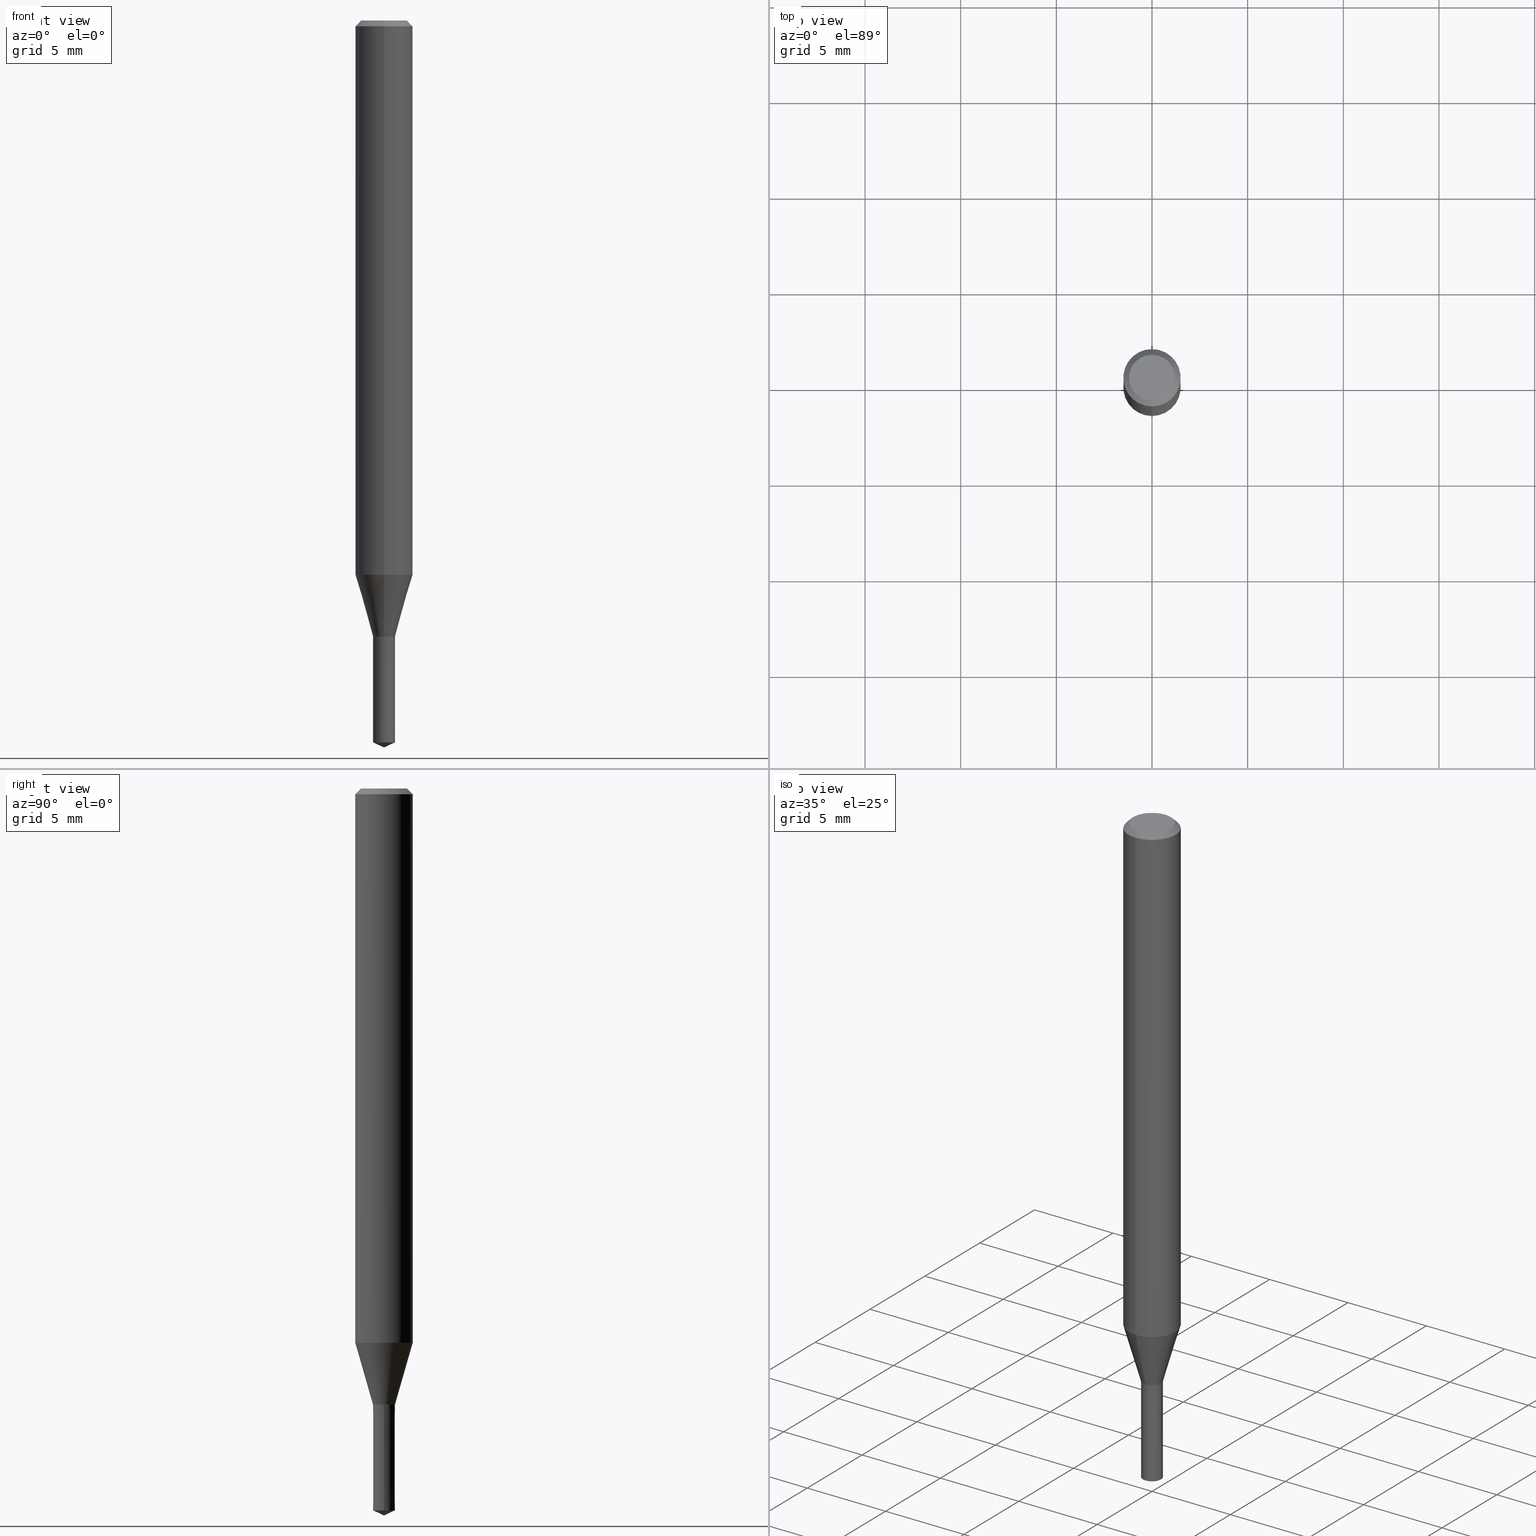
[diagram: canonical four-view strip — front | top / right | iso, engineering-drawing reading convention]
A machine part, canonical four-view strip (front | top / right | iso — engineering-drawing reading convention). The complete STEP part file that produces these views, byte-faithful:
ISO-10303-21;
HEADER;
FILE_DESCRIPTION(('no description'),'unknown implementation level');
FILE_NAME('UTDSX2115-058-Huellk.stp','  ',('CIMSOURCE GmbH'),('CADClick - KiM GmbH - www.kimweb.de'),'unknown preprocess','ACIS','unknown authorization');
FILE_SCHEMA(('automotive_design'));
ENDSEC;
DATA;
#1=MECHANICAL_DESIGN_GEOMETRIC_PRESENTATION_REPRESENTATION(' ',(#14,#15,#16,#17,#18,#19,#20,#21,#22,#23,#24,#25,#26,#27,#28,#29,#30,#31,#32,#33,#34,#35,#36,#37,#38,#39,#40,#41,#42,#43,#44,#45,#46,#47,#48,#49,#50,#51,#52,#53,#54,#55,#56,#57,#58,#59,#60,#61,#62,#63,#64,#65,#66,#67,#68,#69,#70,#71),#10);
#2=PRODUCT_DEFINITION_CONTEXT('',#72,'design');
#3=APPLICATION_PROTOCOL_DEFINITION('INTERNATIONAL STANDARD','automotive_design',1994,#72);
#4=PRODUCT_CATEGORY_RELATIONSHIP('NONE','NONE',#73,#74);
#5=SHAPE_DEFINITION_REPRESENTATION(#75,#76);
#6=PRODUCT_DEFINITION_CONTEXT('',#77,'design');
#7=APPLICATION_PROTOCOL_DEFINITION('INTERNATIONAL STANDARD','automotive_design',1994,#77);
#8=PRODUCT_CATEGORY_RELATIONSHIP('NONE','NONE',#78,#79);
#9=SHAPE_DEFINITION_REPRESENTATION(#80,#81);
#10= (GEOMETRIC_REPRESENTATION_CONTEXT(3)GLOBAL_UNCERTAINTY_ASSIGNED_CONTEXT((#84))GLOBAL_UNIT_ASSIGNED_CONTEXT((#86,#87,#88))REPRESENTATION_CONTEXT('NONE','WORKSPACE'));
#14=STYLED_ITEM('',(#90),#91);
#15=STYLED_ITEM('',(#92),#93);
#16=STYLED_ITEM('',(#94),#95);
#17=STYLED_ITEM('',(#96),#97);
#18=STYLED_ITEM('',(#98),#99);
#19=STYLED_ITEM('',(#100),#101);
#20=STYLED_ITEM('',(#102),#103);
#21=STYLED_ITEM('',(#104),#105);
#22=STYLED_ITEM('',(#106),#107);
#23=STYLED_ITEM('',(#108),#109);
#24=STYLED_ITEM('',(#110),#111);
#25=STYLED_ITEM('',(#112),#113);
#26=STYLED_ITEM('',(#114),#115);
#27=STYLED_ITEM('',(#116),#117);
#28=STYLED_ITEM('',(#118),#119);
#29=STYLED_ITEM('',(#120),#121);
#30=STYLED_ITEM('',(#122),#123);
#31=STYLED_ITEM('',(#124),#125);
#32=STYLED_ITEM('',(#126),#127);
#33=STYLED_ITEM('',(#128),#129);
#34=STYLED_ITEM('',(#130),#131);
#35=STYLED_ITEM('',(#132),#133);
#36=STYLED_ITEM('',(#134),#135);
#37=STYLED_ITEM('',(#136),#137);
#38=STYLED_ITEM('',(#138),#139);
#39=STYLED_ITEM('',(#140),#141);
#40=STYLED_ITEM('',(#142),#143);
#41=STYLED_ITEM('',(#144),#145);
#42=STYLED_ITEM('',(#146),#147);
#43=STYLED_ITEM('',(#148),#149);
#44=STYLED_ITEM('',(#150),#151);
#45=STYLED_ITEM('',(#152),#153);
#46=STYLED_ITEM('',(#154),#155);
#47=STYLED_ITEM('',(#156),#157);
#48=STYLED_ITEM('',(#158),#159);
#49=STYLED_ITEM('',(#160),#161);
#50=STYLED_ITEM('',(#162),#163);
#51=STYLED_ITEM('',(#164),#165);
#52=STYLED_ITEM('',(#166),#167);
#53=STYLED_ITEM('',(#168),#169);
#54=STYLED_ITEM('',(#170),#171);
#55=STYLED_ITEM('',(#172),#173);
#56=STYLED_ITEM('',(#174),#175);
#57=STYLED_ITEM('',(#176),#177);
#58=STYLED_ITEM('',(#178),#179);
#59=STYLED_ITEM('',(#180),#181);
#60=STYLED_ITEM('',(#182),#183);
#61=STYLED_ITEM('',(#184),#185);
#62=STYLED_ITEM('',(#186),#187);
#63=STYLED_ITEM('',(#188),#189);
#64=STYLED_ITEM('',(#190),#191);
#65=STYLED_ITEM('',(#192),#193);
#66=STYLED_ITEM('',(#194),#195);
#67=STYLED_ITEM('',(#196),#197);
#68=STYLED_ITEM('',(#198),#199);
#69=STYLED_ITEM('',(#200),#201);
#70=STYLED_ITEM('',(#202),#203);
#71=STYLED_ITEM('',(#204),#205);
#72=APPLICATION_CONTEXT(' ');
#73=PRODUCT_CATEGORY('part','NONE');
#74=PRODUCT_RELATED_PRODUCT_CATEGORY('detail',' ',(#206));
#75=PRODUCT_DEFINITION_SHAPE('NONE','NONE',#207);
#76=ADVANCED_BREP_SHAPE_REPRESENTATION('1',(#101,#208),#10);
#77=APPLICATION_CONTEXT(' ');
#78=PRODUCT_CATEGORY('part','NONE');
#79=PRODUCT_RELATED_PRODUCT_CATEGORY('detail',' ',(#209));
#80=PRODUCT_DEFINITION_SHAPE('NONE','NONE',#210);
#81=ADVANCED_BREP_SHAPE_REPRESENTATION('2',(#185,#211),#10);
#84=UNCERTAINTY_MEASURE_WITH_UNIT(LENGTH_MEASURE(1.0E-006),#86,'','');
#86= (CONVERSION_BASED_UNIT('MILLIMETRE',#214)LENGTH_UNIT()NAMED_UNIT(#217));
#87= (NAMED_UNIT(#219)PLANE_ANGLE_UNIT()SI_UNIT($,.RADIAN.));
#88= (NAMED_UNIT(#219)SOLID_ANGLE_UNIT()SI_UNIT($,.STERADIAN.));
#90=PRESENTATION_STYLE_ASSIGNMENT((#225));
#91=VERTEX_POINT('',#226);
#92=PRESENTATION_STYLE_ASSIGNMENT((#227));
#93=ADVANCED_FACE('',(#228),#229,.T.);
#94=PRESENTATION_STYLE_ASSIGNMENT((#230));
#95=ADVANCED_FACE('',(#231),#232,.T.);
#96=PRESENTATION_STYLE_ASSIGNMENT((#233));
#97=VERTEX_POINT('',#234);
#98=PRESENTATION_STYLE_ASSIGNMENT((#235));
#99=EDGE_CURVE('',#107,#203,#236,.T.);
#100=PRESENTATION_STYLE_ASSIGNMENT((#237));
#101=MANIFOLD_SOLID_BREP('1',#238);
#102=PRESENTATION_STYLE_ASSIGNMENT((#239));
#103=EDGE_CURVE('',#161,#143,#240,.T.);
#104=PRESENTATION_STYLE_ASSIGNMENT((#241));
#105=EDGE_CURVE('',#189,#117,#242,.T.);
#106=PRESENTATION_STYLE_ASSIGNMENT((#243));
#107=VERTEX_POINT('',#244);
#108=PRESENTATION_STYLE_ASSIGNMENT((#245));
#109=VERTEX_POINT('',#246);
#110=PRESENTATION_STYLE_ASSIGNMENT((#247));
#111=EDGE_CURVE('',#109,#153,#248,.T.);
#112=PRESENTATION_STYLE_ASSIGNMENT((#249));
#113=ADVANCED_FACE('',(#250),#251,.T.);
#114=PRESENTATION_STYLE_ASSIGNMENT((#252));
#115=EDGE_CURVE('',#153,#109,#253,.T.);
#116=PRESENTATION_STYLE_ASSIGNMENT((#254));
#117=VERTEX_POINT('',#255);
#118=PRESENTATION_STYLE_ASSIGNMENT((#256));
#119=ADVANCED_FACE('',(#257),#258,.T.);
#120=PRESENTATION_STYLE_ASSIGNMENT((#259));
#121=EDGE_CURVE('',#203,#123,#260,.T.);
#122=PRESENTATION_STYLE_ASSIGNMENT((#261));
#123=VERTEX_POINT('',#262);
#124=PRESENTATION_STYLE_ASSIGNMENT((#263));
#125=EDGE_CURVE('',#109,#187,#264,.T.);
#126=PRESENTATION_STYLE_ASSIGNMENT((#265));
#127=VERTEX_POINT('',#266);
#128=PRESENTATION_STYLE_ASSIGNMENT((#267));
#129=VERTEX_POINT('',#268);
#130=PRESENTATION_STYLE_ASSIGNMENT((#269));
#131=ADVANCED_FACE('',(#270),#271,.T.);
#132=PRESENTATION_STYLE_ASSIGNMENT((#272));
#133=EDGE_CURVE('',#157,#189,#273,.T.);
#134=PRESENTATION_STYLE_ASSIGNMENT((#274));
#135=EDGE_CURVE('',#189,#157,#275,.T.);
#136=PRESENTATION_STYLE_ASSIGNMENT((#276));
#137=EDGE_CURVE('',#143,#129,#277,.T.);
#138=PRESENTATION_STYLE_ASSIGNMENT((#278));
#139=ADVANCED_FACE('',(#279),#280,.T.);
#140=PRESENTATION_STYLE_ASSIGNMENT((#281));
#141=EDGE_CURVE('',#129,#187,#282,.T.);
#142=PRESENTATION_STYLE_ASSIGNMENT((#283));
#143=VERTEX_POINT('',#284);
#144=PRESENTATION_STYLE_ASSIGNMENT((#285));
#145=EDGE_CURVE('',#127,#157,#286,.T.);
#146=PRESENTATION_STYLE_ASSIGNMENT((#287));
#147=EDGE_CURVE('',#127,#117,#288,.T.);
#148=PRESENTATION_STYLE_ASSIGNMENT((#289));
#149=EDGE_CURVE('',#97,#189,#290,.T.);
#150=PRESENTATION_STYLE_ASSIGNMENT((#291));
#151=ADVANCED_FACE('',(#292),#293,.T.);
#152=PRESENTATION_STYLE_ASSIGNMENT((#294));
#153=VERTEX_POINT('',#295);
#154=PRESENTATION_STYLE_ASSIGNMENT((#296));
#155=EDGE_CURVE('',#107,#91,#297,.T.);
#156=PRESENTATION_STYLE_ASSIGNMENT((#298));
#157=VERTEX_POINT('',#299);
#158=PRESENTATION_STYLE_ASSIGNMENT((#300));
#159=EDGE_CURVE('',#129,#153,#301,.T.);
#160=PRESENTATION_STYLE_ASSIGNMENT((#302));
#161=VERTEX_POINT('',#303);
#162=PRESENTATION_STYLE_ASSIGNMENT((#304));
#163=ADVANCED_FACE('',(#305),#306,.T.);
#164=PRESENTATION_STYLE_ASSIGNMENT((#307));
#165=ADVANCED_FACE('',(#308),#309,.T.);
#166=PRESENTATION_STYLE_ASSIGNMENT((#310));
#167=ADVANCED_FACE('',(#311),#312,.T.);
#168=PRESENTATION_STYLE_ASSIGNMENT((#313));
#169=EDGE_CURVE('',#143,#161,#314,.T.);
#170=PRESENTATION_STYLE_ASSIGNMENT((#315));
#171=EDGE_CURVE('',#157,#97,#316,.T.);
#172=PRESENTATION_STYLE_ASSIGNMENT((#317));
#173=EDGE_CURVE('',#91,#143,#318,.T.);
#174=PRESENTATION_STYLE_ASSIGNMENT((#319));
#175=EDGE_CURVE('',#117,#127,#320,.T.);
#176=PRESENTATION_STYLE_ASSIGNMENT((#321));
#177=EDGE_CURVE('',#91,#107,#322,.T.);
#178=PRESENTATION_STYLE_ASSIGNMENT((#323));
#179=EDGE_CURVE('',#123,#203,#324,.T.);
#180=PRESENTATION_STYLE_ASSIGNMENT((#325));
#181=EDGE_CURVE('',#187,#161,#326,.T.);
#182=PRESENTATION_STYLE_ASSIGNMENT((#327));
#183=EDGE_CURVE('',#187,#129,#328,.T.);
#184=PRESENTATION_STYLE_ASSIGNMENT((#329));
#185=MANIFOLD_SOLID_BREP('2',#330);
#186=PRESENTATION_STYLE_ASSIGNMENT((#331));
#187=VERTEX_POINT('',#332);
#188=PRESENTATION_STYLE_ASSIGNMENT((#333));
#189=VERTEX_POINT('',#334);
#190=PRESENTATION_STYLE_ASSIGNMENT((#335));
#191=ADVANCED_FACE('',(#336),#337,.T.);
#192=PRESENTATION_STYLE_ASSIGNMENT((#338));
#193=EDGE_CURVE('',#123,#91,#339,.T.);
#194=PRESENTATION_STYLE_ASSIGNMENT((#340));
#195=ADVANCED_FACE('',(#341),#342,.T.);
#196=PRESENTATION_STYLE_ASSIGNMENT((#343));
#197=ADVANCED_FACE('',(#344),#345,.T.);
#198=PRESENTATION_STYLE_ASSIGNMENT((#346));
#199=ADVANCED_FACE('',(#347),#348,.T.);
#200=PRESENTATION_STYLE_ASSIGNMENT((#349));
#201=EDGE_CURVE('',#161,#107,#350,.T.);
#202=PRESENTATION_STYLE_ASSIGNMENT((#351));
#203=VERTEX_POINT('',#352);
#204=PRESENTATION_STYLE_ASSIGNMENT((#353));
#205=ADVANCED_FACE('',(#354),#355,.T.);
#206=PRODUCT('1','1','PART-1-DESC',(#356));
#207=PRODUCT_DEFINITION('NONE','NONE',#357,#2);
#208=AXIS2_PLACEMENT_3D('',#358,#359,#360);
#209=PRODUCT('2','2','PART-2-DESC',(#361));
#210=PRODUCT_DEFINITION('NONE','NONE',#362,#6);
#211=AXIS2_PLACEMENT_3D('',#363,#364,#365);
#214=LENGTH_MEASURE_WITH_UNIT(LENGTH_MEASURE(1.0),#366);
#217=DIMENSIONAL_EXPONENTS(1.0,0.0,0.0,0.0,0.0,0.0,0.0);
#219=DIMENSIONAL_EXPONENTS(0.0,0.0,0.0,0.0,0.0,0.0,0.0);
#225=POINT_STYLE(' ',#367,POSITIVE_LENGTH_MEASURE(1.0E-006),#368);
#226=CARTESIAN_POINT('',(0.0,1.5,-0.300000000000001));
#227=SURFACE_STYLE_USAGE(.BOTH.,#369);
#228=FACE_OUTER_BOUND('',#370,.T.);
#229=PLANE('',#371);
#230=SURFACE_STYLE_USAGE(.BOTH.,#372);
#231=FACE_OUTER_BOUND('',#373,.T.);
#232=CONICAL_SURFACE('',#374,0.5755,0.000180770594522013);
#233=POINT_STYLE(' ',#375,POSITIVE_LENGTH_MEASURE(1.0E-006),#376);
#234=CARTESIAN_POINT('',(0.0,0.0,-38.0));
#235=CURVE_STYLE('',#377,POSITIVE_LENGTH_MEASURE(1.0E-006),#378);
#236=LINE('',#379,#380);
#237=SURFACE_STYLE_USAGE(.BOTH.,#381);
#238=CLOSED_SHELL('',(#163,#167,#119,#131,#197,#151,#195,#165,#139,#191));
#239=CURVE_STYLE('',#382,POSITIVE_LENGTH_MEASURE(1.0E-006),#383);
#240=CIRCLE('',#384,1.5);
#241=CURVE_STYLE('',#385,POSITIVE_LENGTH_MEASURE(1.0E-006),#386);
#242=LINE('',#387,#388);
#243=POINT_STYLE(' ',#389,POSITIVE_LENGTH_MEASURE(1.0E-006),#390);
#244=CARTESIAN_POINT('',(1.83690953073357E-016,-1.5,-0.300000000000001));
#245=POINT_STYLE(' ',#391,POSITIVE_LENGTH_MEASURE(1.0E-006),#392);
#246=CARTESIAN_POINT('',(7.04760956624778E-017,-0.5755,-32.2));
#247=CURVE_STYLE('',#393,POSITIVE_LENGTH_MEASURE(1.0E-006),#394);
#248=CIRCLE('',#395,0.5755);
#249=SURFACE_STYLE_USAGE(.BOTH.,#396);
#250=FACE_OUTER_BOUND('',#397,.T.);
#251=CONICAL_SURFACE('',#398,0.2875,1.13446401870914);
#252=CURVE_STYLE('',#399,POSITIVE_LENGTH_MEASURE(1.0E-006),#400);
#253=CIRCLE('',#401,0.5755);
#254=POINT_STYLE(' ',#402,POSITIVE_LENGTH_MEASURE(1.0E-006),#403);
#255=CARTESIAN_POINT('',(0.576,7.05373259801689E-017,-32.2));
#256=SURFACE_STYLE_USAGE(.BOTH.,#404);
#257=FACE_OUTER_BOUND('',#405,.T.);
#258=CYLINDRICAL_SURFACE('',#406,1.5);
#259=CURVE_STYLE('',#407,POSITIVE_LENGTH_MEASURE(1.0E-006),#408);
#260=CIRCLE('',#409,1.2);
#261=POINT_STYLE(' ',#410,POSITIVE_LENGTH_MEASURE(1.0E-006),#411);
#262=CARTESIAN_POINT('',(0.0,1.2,0.0));
#263=CURVE_STYLE('',#412,POSITIVE_LENGTH_MEASURE(1.0E-006),#413);
#264=LINE('',#414,#415);
#265=POINT_STYLE(' ',#416,POSITIVE_LENGTH_MEASURE(1.0E-006),#417);
#266=CARTESIAN_POINT('',(-0.576,0.0,-32.2));
#267=POINT_STYLE(' ',#418,POSITIVE_LENGTH_MEASURE(1.0E-006),#419);
#268=CARTESIAN_POINT('',(0.0,0.575,-32.1991339745962));
#269=SURFACE_STYLE_USAGE(.BOTH.,#420);
#270=FACE_OUTER_BOUND('',#421,.T.);
#271=CONICAL_SURFACE('',#422,1.35,0.785398163397447);
#272=CURVE_STYLE('',#423,POSITIVE_LENGTH_MEASURE(1.0E-006),#424);
#273=CIRCLE('',#425,0.575);
#274=CURVE_STYLE('',#426,POSITIVE_LENGTH_MEASURE(1.0E-006),#427);
#275=CIRCLE('',#428,0.575);
#276=CURVE_STYLE('',#429,POSITIVE_LENGTH_MEASURE(1.0E-006),#430);
#277=LINE('',#431,#432);
#278=SURFACE_STYLE_USAGE(.BOTH.,#433);
#279=FACE_OUTER_BOUND('',#434,.T.);
#280=CONICAL_SURFACE('',#435,0.57525,0.523598775598234);
#281=CURVE_STYLE('',#436,POSITIVE_LENGTH_MEASURE(1.0E-006),#437);
#282=CIRCLE('',#438,0.575);
#283=POINT_STYLE(' ',#439,POSITIVE_LENGTH_MEASURE(1.0E-006),#440);
#284=CARTESIAN_POINT('',(0.0,1.5,-28.974));
#285=CURVE_STYLE('',#441,POSITIVE_LENGTH_MEASURE(1.0E-006),#442);
#286=LINE('',#443,#444);
#287=CURVE_STYLE('',#445,POSITIVE_LENGTH_MEASURE(1.0E-006),#446);
#288=CIRCLE('',#447,0.576);
#289=CURVE_STYLE('',#448,POSITIVE_LENGTH_MEASURE(1.0E-006),#449);
#290=LINE('',#450,#451);
#291=SURFACE_STYLE_USAGE(.BOTH.,#452);
#292=FACE_OUTER_BOUND('',#453,.T.);
#293=CONICAL_SURFACE('',#454,1.35,0.785398163397447);
#294=POINT_STYLE(' ',#455,POSITIVE_LENGTH_MEASURE(1.0E-006),#456);
#295=CARTESIAN_POINT('',(0.0,0.5755,-32.2));
#296=CURVE_STYLE('',#457,POSITIVE_LENGTH_MEASURE(1.0E-006),#458);
#297=CIRCLE('',#459,1.5);
#298=POINT_STYLE(' ',#460,POSITIVE_LENGTH_MEASURE(1.0E-006),#461);
#299=CARTESIAN_POINT('',(-0.575,0.0,-37.7318731));
#300=CURVE_STYLE('',#462,POSITIVE_LENGTH_MEASURE(1.0E-006),#463);
#301=LINE('',#464,#465);
#302=POINT_STYLE(' ',#466,POSITIVE_LENGTH_MEASURE(1.0E-006),#467);
#303=CARTESIAN_POINT('',(1.83690953073357E-016,-1.5,-28.974));
#304=SURFACE_STYLE_USAGE(.BOTH.,#468);
#305=FACE_OUTER_BOUND('',#469,.T.);
#306=CONICAL_SURFACE('',#470,0.57525,0.523598775598234);
#307=SURFACE_STYLE_USAGE(.BOTH.,#471);
#308=FACE_OUTER_BOUND('',#472,.T.);
#309=CONICAL_SURFACE('',#473,1.0375,0.279312190951098);
#310=SURFACE_STYLE_USAGE(.BOTH.,#474);
#311=FACE_OUTER_BOUND('',#475,.T.);
#312=CONICAL_SURFACE('',#476,1.0375,0.279312190951098);
#313=CURVE_STYLE('',#477,POSITIVE_LENGTH_MEASURE(1.0E-006),#478);
#314=CIRCLE('',#479,1.5);
#315=CURVE_STYLE('',#480,POSITIVE_LENGTH_MEASURE(1.0E-006),#481);
#316=LINE('',#482,#483);
#317=CURVE_STYLE('',#484,POSITIVE_LENGTH_MEASURE(1.0E-006),#485);
#318=LINE('',#486,#487);
#319=CURVE_STYLE('',#488,POSITIVE_LENGTH_MEASURE(1.0E-006),#489);
#320=CIRCLE('',#490,0.576);
#321=CURVE_STYLE('',#491,POSITIVE_LENGTH_MEASURE(1.0E-006),#492);
#322=CIRCLE('',#493,1.5);
#323=CURVE_STYLE('',#494,POSITIVE_LENGTH_MEASURE(1.0E-006),#495);
#324=CIRCLE('',#496,1.2);
#325=CURVE_STYLE('',#497,POSITIVE_LENGTH_MEASURE(1.0E-006),#498);
#326=LINE('',#499,#500);
#327=CURVE_STYLE('',#501,POSITIVE_LENGTH_MEASURE(1.0E-006),#502);
#328=CIRCLE('',#503,0.575);
#329=SURFACE_STYLE_USAGE(.BOTH.,#504);
#330=CLOSED_SHELL('',(#199,#205,#93,#95,#113));
#331=POINT_STYLE(' ',#505,POSITIVE_LENGTH_MEASURE(1.0E-006),#506);
#332=CARTESIAN_POINT('',(7.04148653447867E-017,-0.575,-32.1991339745962));
#333=POINT_STYLE(' ',#507,POSITIVE_LENGTH_MEASURE(1.0E-006),#508);
#334=CARTESIAN_POINT('',(0.575,7.04148653447867E-017,-37.7318731));
#335=SURFACE_STYLE_USAGE(.BOTH.,#509);
#336=FACE_OUTER_BOUND('',#510,.T.);
#337=PLANE('',#511);
#338=CURVE_STYLE('',#512,POSITIVE_LENGTH_MEASURE(1.0E-006),#513);
#339=LINE('',#514,#515);
#340=SURFACE_STYLE_USAGE(.BOTH.,#516);
#341=FACE_OUTER_BOUND('',#517,.T.);
#342=CYLINDRICAL_SURFACE('',#518,1.5);
#343=SURFACE_STYLE_USAGE(.BOTH.,#519);
#344=FACE_OUTER_BOUND('',#520,.T.);
#345=PLANE('',#521);
#346=SURFACE_STYLE_USAGE(.BOTH.,#522);
#347=FACE_OUTER_BOUND('',#523,.T.);
#348=CONICAL_SURFACE('',#524,0.2875,1.13446401870914);
#349=CURVE_STYLE('',#525,POSITIVE_LENGTH_MEASURE(1.0E-006),#526);
#350=LINE('',#527,#528);
#351=POINT_STYLE(' ',#529,POSITIVE_LENGTH_MEASURE(1.0E-006),#530);
#352=CARTESIAN_POINT('',(1.46952762458685E-016,-1.2,0.0));
#353=SURFACE_STYLE_USAGE(.BOTH.,#531);
#354=FACE_OUTER_BOUND('',#532,.T.);
#355=CONICAL_SURFACE('',#533,0.5755,0.000180770594522013);
#356=PRODUCT_CONTEXT('',#72,'mechanical');
#357=PRODUCT_DEFINITION_FORMATION_WITH_SPECIFIED_SOURCE(' ','NONE',#206,.NOT_KNOWN.);
#358=CARTESIAN_POINT('',(0.0,0.0,0.0));
#359=DIRECTION('',(0.0,0.0,1.0));
#360=DIRECTION('',(1.0,0.0,0.0));
#361=PRODUCT_CONTEXT('',#77,'mechanical');
#362=PRODUCT_DEFINITION_FORMATION_WITH_SPECIFIED_SOURCE(' ','NONE',#209,.NOT_KNOWN.);
#363=CARTESIAN_POINT('',(0.0,0.0,0.0));
#364=DIRECTION('',(0.0,0.0,1.0));
#365=DIRECTION('',(1.0,0.0,0.0));
#366= (NAMED_UNIT(#217)LENGTH_UNIT()SI_UNIT(.MILLI.,.METRE.));
#367=PRE_DEFINED_MARKER('');
#368=COLOUR_RGB('',0.498039215803146,0.498039215803146,0.498039215803146);
#369=SURFACE_SIDE_STYLE('',(#535));
#370=EDGE_LOOP('',(#536,#537));
#371=AXIS2_PLACEMENT_3D('',#538,#539,#540);
#372=SURFACE_SIDE_STYLE('',(#541));
#373=EDGE_LOOP('',(#542,#543,#544,#545));
#374=AXIS2_PLACEMENT_3D('',#546,#547,#548);
#375=PRE_DEFINED_MARKER('');
#376=COLOUR_RGB('',0.800000011920929,0.800000011920929,0.800000011920929);
#377=DRAUGHTING_PRE_DEFINED_CURVE_FONT('continuous');
#378=COLOUR_RGB('',0.498039215803146,0.498039215803146,0.498039215803146);
#379=CARTESIAN_POINT('',(1.65321857766021E-016,-1.35,-0.150000000000002));
#380=VECTOR('',#549,1.0);
#381=SURFACE_SIDE_STYLE('',(#550));
#382=DRAUGHTING_PRE_DEFINED_CURVE_FONT('continuous');
#383=COLOUR_RGB('',0.498039215803146,0.498039215803146,0.498039215803146);
#384=AXIS2_PLACEMENT_3D('',#551,#552,#553);
#385=DRAUGHTING_PRE_DEFINED_CURVE_FONT('continuous');
#386=COLOUR_RGB('',0.800000011920929,0.800000011920929,0.800000011920929);
#387=CARTESIAN_POINT('',(0.5755,7.04760956624778E-017,-34.96593655));
#388=VECTOR('',#554,1.0);
#389=PRE_DEFINED_MARKER('');
#390=COLOUR_RGB('',0.498039215803146,0.498039215803146,0.498039215803146);
#391=PRE_DEFINED_MARKER('');
#392=COLOUR_RGB('',0.498039215803146,0.498039215803146,0.498039215803146);
#393=DRAUGHTING_PRE_DEFINED_CURVE_FONT('continuous');
#394=COLOUR_RGB('',0.498039215803146,0.498039215803146,0.498039215803146);
#395=AXIS2_PLACEMENT_3D('',#555,#556,#557);
#396=SURFACE_SIDE_STYLE('',(#558));
#397=EDGE_LOOP('',(#559,#560,#561));
#398=AXIS2_PLACEMENT_3D('',#562,#563,#564);
#399=DRAUGHTING_PRE_DEFINED_CURVE_FONT('continuous');
#400=COLOUR_RGB('',0.498039215803146,0.498039215803146,0.498039215803146);
#401=AXIS2_PLACEMENT_3D('',#565,#566,#567);
#402=PRE_DEFINED_MARKER('');
#403=COLOUR_RGB('',0.800000011920929,0.800000011920929,0.800000011920929);
#404=SURFACE_SIDE_STYLE('',(#568));
#405=EDGE_LOOP('',(#569,#570,#571,#572));
#406=AXIS2_PLACEMENT_3D('',#573,#574,#575);
#407=DRAUGHTING_PRE_DEFINED_CURVE_FONT('continuous');
#408=COLOUR_RGB('',0.498039215803146,0.498039215803146,0.498039215803146);
#409=AXIS2_PLACEMENT_3D('',#576,#577,#578);
#410=PRE_DEFINED_MARKER('');
#411=COLOUR_RGB('',0.498039215803146,0.498039215803146,0.498039215803146);
#412=DRAUGHTING_PRE_DEFINED_CURVE_FONT('continuous');
#413=COLOUR_RGB('',0.498039215803146,0.498039215803146,0.498039215803146);
#414=CARTESIAN_POINT('',(7.04454805036323E-017,-0.57525,-32.1995669872981));
#415=VECTOR('',#579,1.0);
#416=PRE_DEFINED_MARKER('');
#417=COLOUR_RGB('',0.800000011920929,0.800000011920929,0.800000011920929);
#418=PRE_DEFINED_MARKER('');
#419=COLOUR_RGB('',0.498039215803146,0.498039215803146,0.498039215803146);
#420=SURFACE_SIDE_STYLE('',(#580));
#421=EDGE_LOOP('',(#581,#582,#583,#584));
#422=AXIS2_PLACEMENT_3D('',#585,#586,#587);
#423=DRAUGHTING_PRE_DEFINED_CURVE_FONT('continuous');
#424=COLOUR_RGB('',0.800000011920929,0.800000011920929,0.800000011920929);
#425=AXIS2_PLACEMENT_3D('',#588,#589,#590);
#426=DRAUGHTING_PRE_DEFINED_CURVE_FONT('continuous');
#427=COLOUR_RGB('',0.800000011920929,0.800000011920929,0.800000011920929);
#428=AXIS2_PLACEMENT_3D('',#591,#592,#593);
#429=DRAUGHTING_PRE_DEFINED_CURVE_FONT('continuous');
#430=COLOUR_RGB('',0.498039215803146,0.498039215803146,0.498039215803146);
#431=CARTESIAN_POINT('',(-1.27052909209072E-016,1.0375,-30.5865669872981));
#432=VECTOR('',#594,1.0);
#433=SURFACE_SIDE_STYLE('',(#595));
#434=EDGE_LOOP('',(#596,#597,#598,#599));
#435=AXIS2_PLACEMENT_3D('',#600,#601,#602);
#436=DRAUGHTING_PRE_DEFINED_CURVE_FONT('continuous');
#437=COLOUR_RGB('',0.498039215803146,0.498039215803146,0.498039215803146);
#438=AXIS2_PLACEMENT_3D('',#603,#604,#605);
#439=PRE_DEFINED_MARKER('');
#440=COLOUR_RGB('',0.498039215803146,0.498039215803146,0.498039215803146);
#441=DRAUGHTING_PRE_DEFINED_CURVE_FONT('continuous');
#442=COLOUR_RGB('',0.800000011920929,0.800000011920929,0.800000011920929);
#443=CARTESIAN_POINT('',(-0.5755,-7.04760956624778E-017,-34.96593655));
#444=VECTOR('',#606,1.0);
#445=DRAUGHTING_PRE_DEFINED_CURVE_FONT('continuous');
#446=COLOUR_RGB('',0.800000011920929,0.800000011920929,0.800000011920929);
#447=AXIS2_PLACEMENT_3D('',#607,#608,#609);
#448=DRAUGHTING_PRE_DEFINED_CURVE_FONT('continuous');
#449=COLOUR_RGB('',0.800000011920929,0.800000011920929,0.800000011920929);
#450=CARTESIAN_POINT('',(0.2875,3.52074326723933E-017,-37.86593655));
#451=VECTOR('',#610,1.0);
#452=SURFACE_SIDE_STYLE('',(#611));
#453=EDGE_LOOP('',(#612,#613,#614,#615));
#454=AXIS2_PLACEMENT_3D('',#616,#617,#618);
#455=PRE_DEFINED_MARKER('');
#456=COLOUR_RGB('',0.498039215803146,0.498039215803146,0.498039215803146);
#457=DRAUGHTING_PRE_DEFINED_CURVE_FONT('continuous');
#458=COLOUR_RGB('',0.498039215803146,0.498039215803146,0.498039215803146);
#459=AXIS2_PLACEMENT_3D('',#619,#620,#621);
#460=PRE_DEFINED_MARKER('');
#461=COLOUR_RGB('',0.800000011920929,0.800000011920929,0.800000011920929);
#462=DRAUGHTING_PRE_DEFINED_CURVE_FONT('continuous');
#463=COLOUR_RGB('',0.498039215803146,0.498039215803146,0.498039215803146);
#464=CARTESIAN_POINT('',(-7.04454805036322E-017,0.57525,-32.1995669872981));
#465=VECTOR('',#622,1.0);
#466=PRE_DEFINED_MARKER('');
#467=COLOUR_RGB('',0.498039215803146,0.498039215803146,0.498039215803146);
#468=SURFACE_SIDE_STYLE('',(#623));
#469=EDGE_LOOP('',(#624,#625,#626,#627));
#470=AXIS2_PLACEMENT_3D('',#628,#629,#630);
#471=SURFACE_SIDE_STYLE('',(#631));
#472=EDGE_LOOP('',(#632,#633,#634,#635));
#473=AXIS2_PLACEMENT_3D('',#636,#637,#638);
#474=SURFACE_SIDE_STYLE('',(#639));
#475=EDGE_LOOP('',(#640,#641,#642,#643));
#476=AXIS2_PLACEMENT_3D('',#644,#645,#646);
#477=DRAUGHTING_PRE_DEFINED_CURVE_FONT('continuous');
#478=COLOUR_RGB('',0.498039215803146,0.498039215803146,0.498039215803146);
#479=AXIS2_PLACEMENT_3D('',#647,#648,#649);
#480=DRAUGHTING_PRE_DEFINED_CURVE_FONT('continuous');
#481=COLOUR_RGB('',0.800000011920929,0.800000011920929,0.800000011920929);
#482=CARTESIAN_POINT('',(-0.2875,-3.52074326723934E-017,-37.86593655));
#483=VECTOR('',#650,1.0);
#484=DRAUGHTING_PRE_DEFINED_CURVE_FONT('continuous');
#485=COLOUR_RGB('',0.498039215803146,0.498039215803146,0.498039215803146);
#486=CARTESIAN_POINT('',(-1.83690953073357E-016,1.5,-14.637));
#487=VECTOR('',#651,1.0);
#488=DRAUGHTING_PRE_DEFINED_CURVE_FONT('continuous');
#489=COLOUR_RGB('',0.800000011920929,0.800000011920929,0.800000011920929);
#490=AXIS2_PLACEMENT_3D('',#652,#653,#654);
#491=DRAUGHTING_PRE_DEFINED_CURVE_FONT('continuous');
#492=COLOUR_RGB('',0.498039215803146,0.498039215803146,0.498039215803146);
#493=AXIS2_PLACEMENT_3D('',#655,#656,#657);
#494=DRAUGHTING_PRE_DEFINED_CURVE_FONT('continuous');
#495=COLOUR_RGB('',0.498039215803146,0.498039215803146,0.498039215803146);
#496=AXIS2_PLACEMENT_3D('',#658,#659,#660);
#497=DRAUGHTING_PRE_DEFINED_CURVE_FONT('continuous');
#498=COLOUR_RGB('',0.498039215803146,0.498039215803146,0.498039215803146);
#499=CARTESIAN_POINT('',(1.27052909209072E-016,-1.0375,-30.5865669872981));
#500=VECTOR('',#661,1.0);
#501=DRAUGHTING_PRE_DEFINED_CURVE_FONT('continuous');
#502=COLOUR_RGB('',0.498039215803146,0.498039215803146,0.498039215803146);
#503=AXIS2_PLACEMENT_3D('',#662,#663,#664);
#504=SURFACE_SIDE_STYLE('',(#665));
#505=PRE_DEFINED_MARKER('');
#506=COLOUR_RGB('',0.498039215803146,0.498039215803146,0.498039215803146);
#507=PRE_DEFINED_MARKER('');
#508=COLOUR_RGB('',0.800000011920929,0.800000011920929,0.800000011920929);
#509=SURFACE_SIDE_STYLE('',(#666));
#510=EDGE_LOOP('',(#667,#668));
#511=AXIS2_PLACEMENT_3D('',#669,#670,#671);
#512=DRAUGHTING_PRE_DEFINED_CURVE_FONT('continuous');
#513=COLOUR_RGB('',0.498039215803146,0.498039215803146,0.498039215803146);
#514=CARTESIAN_POINT('',(-1.65321857766021E-016,1.35,-0.150000000000002));
#515=VECTOR('',#672,1.0);
#516=SURFACE_SIDE_STYLE('',(#673));
#517=EDGE_LOOP('',(#674,#675,#676,#677));
#518=AXIS2_PLACEMENT_3D('',#678,#679,#680);
#519=SURFACE_SIDE_STYLE('',(#681));
#520=EDGE_LOOP('',(#682,#683));
#521=AXIS2_PLACEMENT_3D('',#684,#685,#686);
#522=SURFACE_SIDE_STYLE('',(#687));
#523=EDGE_LOOP('',(#688,#689,#690));
#524=AXIS2_PLACEMENT_3D('',#691,#692,#693);
#525=DRAUGHTING_PRE_DEFINED_CURVE_FONT('continuous');
#526=COLOUR_RGB('',0.498039215803146,0.498039215803146,0.498039215803146);
#527=CARTESIAN_POINT('',(1.83690953073357E-016,-1.5,-14.637));
#528=VECTOR('',#694,1.0);
#529=PRE_DEFINED_MARKER('');
#530=COLOUR_RGB('',0.498039215803146,0.498039215803146,0.498039215803146);
#531=SURFACE_SIDE_STYLE('',(#695));
#532=EDGE_LOOP('',(#696,#697,#698,#699));
#533=AXIS2_PLACEMENT_3D('',#700,#701,#702);
#535=SURFACE_STYLE_FILL_AREA(#703);
#536=ORIENTED_EDGE('',*,*,#147,.F.);
#537=ORIENTED_EDGE('',*,*,#175,.F.);
#538=CARTESIAN_POINT('',(-0.288,0.0,-32.2));
#539=DIRECTION('',(0.0,0.0,1.0));
#540=DIRECTION('',(1.0,0.0,0.0));
#541=SURFACE_STYLE_FILL_AREA(#704);
#542=ORIENTED_EDGE('',*,*,#145,.T.);
#543=ORIENTED_EDGE('',*,*,#135,.F.);
#544=ORIENTED_EDGE('',*,*,#105,.T.);
#545=ORIENTED_EDGE('',*,*,#175,.T.);
#546=CARTESIAN_POINT('',(0.0,0.0,-34.96593655));
#547=DIRECTION('',(-0.0,-0.0,1.0));
#548=DIRECTION('',(-1.0,0.0,0.0));
#549=DIRECTION('',(-8.65927457071934E-017,0.707106781186546,0.707106781186549));
#550=SURFACE_STYLE_FILL_AREA(#705);
#551=CARTESIAN_POINT('',(0.0,0.0,-28.974));
#552=DIRECTION('',(0.0,0.0,-1.0));
#553=DIRECTION('',(0.0,1.0,0.0));
#554=DIRECTION('',(0.000180770593537476,2.21372817430235E-020,0.999999983660996));
#555=CARTESIAN_POINT('',(0.0,0.0,-32.2));
#556=DIRECTION('',(0.0,0.0,-1.0));
#557=DIRECTION('',(0.0,1.0,0.0));
#558=SURFACE_STYLE_FILL_AREA(#706);
#559=ORIENTED_EDGE('',*,*,#149,.T.);
#560=ORIENTED_EDGE('',*,*,#135,.T.);
#561=ORIENTED_EDGE('',*,*,#171,.T.);
#562=CARTESIAN_POINT('',(0.0,0.0,-37.86593655));
#563=DIRECTION('',(-0.0,-0.0,1.0));
#564=DIRECTION('',(-1.0,0.0,0.0));
#565=CARTESIAN_POINT('',(0.0,0.0,-32.2));
#566=DIRECTION('',(0.0,0.0,-1.0));
#567=DIRECTION('',(0.0,1.0,0.0));
#568=SURFACE_STYLE_FILL_AREA(#707);
#569=ORIENTED_EDGE('',*,*,#173,.F.);
#570=ORIENTED_EDGE('',*,*,#177,.T.);
#571=ORIENTED_EDGE('',*,*,#201,.F.);
#572=ORIENTED_EDGE('',*,*,#169,.F.);
#573=CARTESIAN_POINT('',(0.0,0.0,-14.637));
#574=DIRECTION('',(-0.0,-0.0,1.0));
#575=DIRECTION('',(0.0,1.0,0.0));
#576=CARTESIAN_POINT('',(0.0,0.0,0.0));
#577=DIRECTION('',(0.0,0.0,-1.0));
#578=DIRECTION('',(0.0,1.0,0.0));
#579=DIRECTION('',(-6.12303176911117E-017,0.499999999999941,0.866025403784473));
#580=SURFACE_STYLE_FILL_AREA(#708);
#581=ORIENTED_EDGE('',*,*,#193,.F.);
#582=ORIENTED_EDGE('',*,*,#179,.T.);
#583=ORIENTED_EDGE('',*,*,#99,.F.);
#584=ORIENTED_EDGE('',*,*,#177,.F.);
#585=CARTESIAN_POINT('',(0.0,0.0,-0.150000000000002));
#586=DIRECTION('',(0.0,-0.0,-1.0));
#587=DIRECTION('',(0.0,1.0,0.0));
#588=CARTESIAN_POINT('',(0.0,0.0,-37.7318731));
#589=DIRECTION('',(0.0,0.0,-1.0));
#590=DIRECTION('',(-1.0,0.0,0.0));
#591=CARTESIAN_POINT('',(0.0,0.0,-37.7318731));
#592=DIRECTION('',(0.0,0.0,-1.0));
#593=DIRECTION('',(-1.0,0.0,0.0));
#594=DIRECTION('',(3.3761731064943E-017,-0.275694560619926,-0.961245290882918));
#595=SURFACE_STYLE_FILL_AREA(#709);
#596=ORIENTED_EDGE('',*,*,#159,.T.);
#597=ORIENTED_EDGE('',*,*,#111,.F.);
#598=ORIENTED_EDGE('',*,*,#125,.T.);
#599=ORIENTED_EDGE('',*,*,#183,.T.);
#600=CARTESIAN_POINT('',(0.0,0.0,-32.1995669872981));
#601=DIRECTION('',(0.0,-0.0,-1.0));
#602=DIRECTION('',(0.0,1.0,0.0));
#603=CARTESIAN_POINT('',(0.0,0.0,-32.1991339745962));
#604=DIRECTION('',(0.0,0.0,-1.0));
#605=DIRECTION('',(0.0,1.0,0.0));
#606=DIRECTION('',(0.000180770593537476,2.21372817430235E-020,-0.999999983660996));
#607=CARTESIAN_POINT('',(0.0,0.0,-32.2));
#608=DIRECTION('',(0.0,0.0,-1.0));
#609=DIRECTION('',(-1.0,0.0,0.0));
#610=DIRECTION('',(0.9063077891129,1.10987027706637E-016,0.422618257288167));
#611=SURFACE_STYLE_FILL_AREA(#710);
#612=ORIENTED_EDGE('',*,*,#193,.T.);
#613=ORIENTED_EDGE('',*,*,#155,.F.);
#614=ORIENTED_EDGE('',*,*,#99,.T.);
#615=ORIENTED_EDGE('',*,*,#121,.T.);
#616=CARTESIAN_POINT('',(0.0,0.0,-0.150000000000002));
#617=DIRECTION('',(0.0,-0.0,-1.0));
#618=DIRECTION('',(0.0,1.0,0.0));
#619=CARTESIAN_POINT('',(0.0,0.0,-0.300000000000001));
#620=DIRECTION('',(0.0,0.0,-1.0));
#621=DIRECTION('',(0.0,1.0,0.0));
#622=DIRECTION('',(-6.12303176911117E-017,0.499999999999941,-0.866025403784473));
#623=SURFACE_STYLE_FILL_AREA(#711);
#624=ORIENTED_EDGE('',*,*,#159,.F.);
#625=ORIENTED_EDGE('',*,*,#141,.T.);
#626=ORIENTED_EDGE('',*,*,#125,.F.);
#627=ORIENTED_EDGE('',*,*,#115,.F.);
#628=CARTESIAN_POINT('',(0.0,0.0,-32.1995669872981));
#629=DIRECTION('',(0.0,-0.0,-1.0));
#630=DIRECTION('',(0.0,1.0,0.0));
#631=SURFACE_STYLE_FILL_AREA(#712);
#632=ORIENTED_EDGE('',*,*,#137,.T.);
#633=ORIENTED_EDGE('',*,*,#183,.F.);
#634=ORIENTED_EDGE('',*,*,#181,.T.);
#635=ORIENTED_EDGE('',*,*,#103,.T.);
#636=CARTESIAN_POINT('',(0.0,0.0,-30.5865669872981));
#637=DIRECTION('',(-0.0,-0.0,1.0));
#638=DIRECTION('',(0.0,1.0,0.0));
#639=SURFACE_STYLE_FILL_AREA(#713);
#640=ORIENTED_EDGE('',*,*,#137,.F.);
#641=ORIENTED_EDGE('',*,*,#169,.T.);
#642=ORIENTED_EDGE('',*,*,#181,.F.);
#643=ORIENTED_EDGE('',*,*,#141,.F.);
#644=CARTESIAN_POINT('',(0.0,0.0,-30.5865669872981));
#645=DIRECTION('',(-0.0,-0.0,1.0));
#646=DIRECTION('',(0.0,1.0,0.0));
#647=CARTESIAN_POINT('',(0.0,0.0,-28.974));
#648=DIRECTION('',(0.0,0.0,-1.0));
#649=DIRECTION('',(0.0,1.0,0.0));
#650=DIRECTION('',(0.9063077891129,1.10987027706637E-016,-0.422618257288167));
#651=DIRECTION('',(0.0,0.0,-1.0));
#652=CARTESIAN_POINT('',(0.0,0.0,-32.2));
#653=DIRECTION('',(0.0,0.0,-1.0));
#654=DIRECTION('',(-1.0,0.0,0.0));
#655=CARTESIAN_POINT('',(0.0,0.0,-0.300000000000001));
#656=DIRECTION('',(0.0,0.0,-1.0));
#657=DIRECTION('',(0.0,1.0,0.0));
#658=CARTESIAN_POINT('',(0.0,0.0,0.0));
#659=DIRECTION('',(0.0,0.0,-1.0));
#660=DIRECTION('',(0.0,1.0,0.0));
#661=DIRECTION('',(3.3761731064943E-017,-0.275694560619926,0.961245290882918));
#662=CARTESIAN_POINT('',(0.0,0.0,-32.1991339745962));
#663=DIRECTION('',(0.0,0.0,-1.0));
#664=DIRECTION('',(0.0,1.0,0.0));
#665=SURFACE_STYLE_FILL_AREA(#714);
#666=SURFACE_STYLE_FILL_AREA(#715);
#667=ORIENTED_EDGE('',*,*,#115,.T.);
#668=ORIENTED_EDGE('',*,*,#111,.T.);
#669=CARTESIAN_POINT('',(0.0,0.28775,-32.2));
#670=DIRECTION('',(0.0,0.0,-1.0));
#671=DIRECTION('',(0.0,1.0,0.0));
#672=DIRECTION('',(-8.65927457071934E-017,0.707106781186546,-0.707106781186549));
#673=SURFACE_STYLE_FILL_AREA(#716);
#674=ORIENTED_EDGE('',*,*,#173,.T.);
#675=ORIENTED_EDGE('',*,*,#103,.F.);
#676=ORIENTED_EDGE('',*,*,#201,.T.);
#677=ORIENTED_EDGE('',*,*,#155,.T.);
#678=CARTESIAN_POINT('',(0.0,0.0,-14.637));
#679=DIRECTION('',(-0.0,-0.0,1.0));
#680=DIRECTION('',(0.0,1.0,0.0));
#681=SURFACE_STYLE_FILL_AREA(#717);
#682=ORIENTED_EDGE('',*,*,#179,.F.);
#683=ORIENTED_EDGE('',*,*,#121,.F.);
#684=CARTESIAN_POINT('',(0.0,0.6,0.0));
#685=DIRECTION('',(-0.0,0.0,1.0));
#686=DIRECTION('',(0.0,-1.0,0.0));
#687=SURFACE_STYLE_FILL_AREA(#718);
#688=ORIENTED_EDGE('',*,*,#149,.F.);
#689=ORIENTED_EDGE('',*,*,#171,.F.);
#690=ORIENTED_EDGE('',*,*,#133,.T.);
#691=CARTESIAN_POINT('',(0.0,0.0,-37.86593655));
#692=DIRECTION('',(-0.0,-0.0,1.0));
#693=DIRECTION('',(-1.0,0.0,0.0));
#694=DIRECTION('',(-0.0,-0.0,1.0));
#695=SURFACE_STYLE_FILL_AREA(#719);
#696=ORIENTED_EDGE('',*,*,#145,.F.);
#697=ORIENTED_EDGE('',*,*,#147,.T.);
#698=ORIENTED_EDGE('',*,*,#105,.F.);
#699=ORIENTED_EDGE('',*,*,#133,.F.);
#700=CARTESIAN_POINT('',(0.0,0.0,-34.96593655));
#701=DIRECTION('',(-0.0,-0.0,1.0));
#702=DIRECTION('',(-1.0,0.0,0.0));
#703=FILL_AREA_STYLE('',(#720));
#704=FILL_AREA_STYLE('',(#721));
#705=FILL_AREA_STYLE('',(#722));
#706=FILL_AREA_STYLE('',(#723));
#707=FILL_AREA_STYLE('',(#724));
#708=FILL_AREA_STYLE('',(#725));
#709=FILL_AREA_STYLE('',(#726));
#710=FILL_AREA_STYLE('',(#727));
#711=FILL_AREA_STYLE('',(#728));
#712=FILL_AREA_STYLE('',(#729));
#713=FILL_AREA_STYLE('',(#730));
#714=FILL_AREA_STYLE('',(#731));
#715=FILL_AREA_STYLE('',(#732));
#716=FILL_AREA_STYLE('',(#733));
#717=FILL_AREA_STYLE('',(#734));
#718=FILL_AREA_STYLE('',(#735));
#719=FILL_AREA_STYLE('',(#736));
#720=FILL_AREA_STYLE_COLOUR('',#737);
#721=FILL_AREA_STYLE_COLOUR('',#738);
#722=FILL_AREA_STYLE_COLOUR('',#739);
#723=FILL_AREA_STYLE_COLOUR('',#740);
#724=FILL_AREA_STYLE_COLOUR('',#741);
#725=FILL_AREA_STYLE_COLOUR('',#742);
#726=FILL_AREA_STYLE_COLOUR('',#743);
#727=FILL_AREA_STYLE_COLOUR('',#744);
#728=FILL_AREA_STYLE_COLOUR('',#745);
#729=FILL_AREA_STYLE_COLOUR('',#746);
#730=FILL_AREA_STYLE_COLOUR('',#747);
#731=FILL_AREA_STYLE_COLOUR('',#748);
#732=FILL_AREA_STYLE_COLOUR('',#749);
#733=FILL_AREA_STYLE_COLOUR('',#750);
#734=FILL_AREA_STYLE_COLOUR('',#751);
#735=FILL_AREA_STYLE_COLOUR('',#752);
#736=FILL_AREA_STYLE_COLOUR('',#753);
#737=COLOUR_RGB('',0.800000011920929,0.800000011920929,0.800000011920929);
#738=COLOUR_RGB('',0.800000011920929,0.800000011920929,0.800000011920929);
#739=COLOUR_RGB('',0.498039215803146,0.498039215803146,0.498039215803146);
#740=COLOUR_RGB('',0.800000011920929,0.800000011920929,0.800000011920929);
#741=COLOUR_RGB('',0.498039215803146,0.498039215803146,0.498039215803146);
#742=COLOUR_RGB('',0.498039215803146,0.498039215803146,0.498039215803146);
#743=COLOUR_RGB('',0.498039215803146,0.498039215803146,0.498039215803146);
#744=COLOUR_RGB('',0.498039215803146,0.498039215803146,0.498039215803146);
#745=COLOUR_RGB('',0.498039215803146,0.498039215803146,0.498039215803146);
#746=COLOUR_RGB('',0.498039215803146,0.498039215803146,0.498039215803146);
#747=COLOUR_RGB('',0.498039215803146,0.498039215803146,0.498039215803146);
#748=COLOUR_RGB('',0.800000011920929,0.800000011920929,0.800000011920929);
#749=COLOUR_RGB('',0.498039215803146,0.498039215803146,0.498039215803146);
#750=COLOUR_RGB('',0.498039215803146,0.498039215803146,0.498039215803146);
#751=COLOUR_RGB('',0.498039215803146,0.498039215803146,0.498039215803146);
#752=COLOUR_RGB('',0.800000011920929,0.800000011920929,0.800000011920929);
#753=COLOUR_RGB('',0.800000011920929,0.800000011920929,0.800000011920929);
#754=AXIS2_PLACEMENT_3D('PCS',#755,#756,#757);
#755=CARTESIAN_POINT('',(0.0,0.0,0.0));
#756=DIRECTION('',(0.0,0.0,1.0));
#757=DIRECTION('',(1.0,0.0,0.0));
#758=AXIS2_PLACEMENT_3D('CIP',#759,#760,#761);
#759=CARTESIAN_POINT('',(0.0,0.0,-38.0));
#760=DIRECTION('',(0.0,0.0,1.0));
#761=DIRECTION('',(1.0,0.0,0.0));
#762=AXIS2_PLACEMENT_3D('CRP',#763,#764,#765);
#763=CARTESIAN_POINT('',(-0.575,0.0,-37.7319));
#764=DIRECTION('',(0.0,0.0,1.0));
#765=DIRECTION('',(1.0,0.0,0.0));
#766=AXIS2_PLACEMENT_3D('MCS',#767,#768,#769);
#767=CARTESIAN_POINT('',(0.0,0.0,-28.974));
#768=DIRECTION('',(0.0,0.0,1.0));
#769=DIRECTION('',(1.0,0.0,0.0));
#770=CONSTRUCTIVE_GEOMETRY_REPRESENTATION_RELATIONSHIP('coordinate systems',$,#76,#771);
#771=CONSTRUCTIVE_GEOMETRY_REPRESENTATION('coordinate systems',(#754,#758,#762,#766),#10);
ENDSEC;
END-ISO-10303-21;
